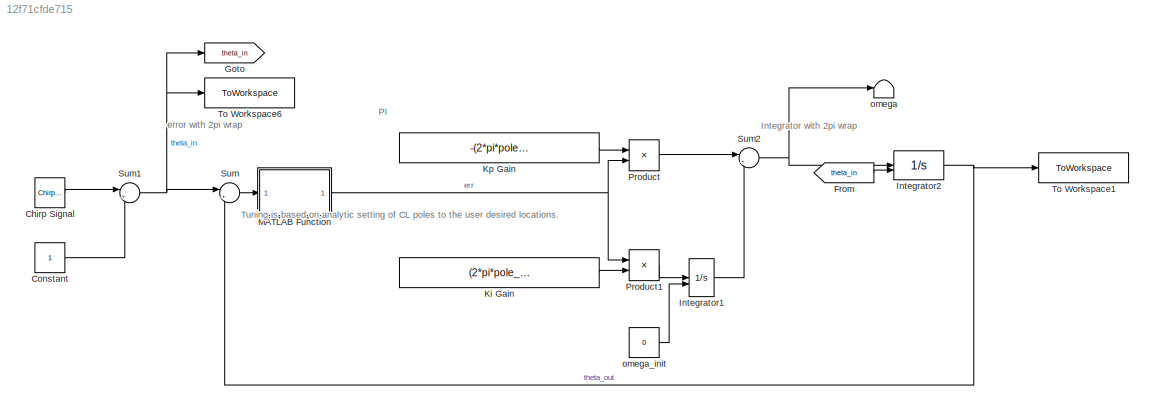
MODEL slx_12f71cfde715
KIND model
CONFIG AbsTol = auto
CONFIG EnableMultiTasking = off
CONFIG FixedStep = Tsim
CONFIG MaxStep = auto
CONFIG MinStep = auto
CONFIG RelTol = 1e-4
CONFIG SampleTimeConstraint = Unconstrained
CONFIG SolverName = FixedStepAuto
CONFIG StartTime = 0.0
CONFIG StopTime = Tend
BLOCK [Reference] Chirp Signal  REF=simulink/Sources/Chirp Signal
  SourceBlock = simulink/Sources/Chirp Signal
  SourceType = chirp
BLOCK [Constant] Constant
BLOCK [From] From
  GotoTag = theta_in
BLOCK [Goto] Goto
  GotoTag = theta_in
BLOCK [Integrator] Integrator1
  InitialConditionSource = external
BLOCK [Integrator] Integrator2
  InitialConditionSource = external
  WrapState = on
BLOCK [Constant] Ki Gain
  Value = (2*pi*pole_1_Hz)*(2*pi*pole_2_Hz)
BLOCK [Constant] Kp Gain
  Value = -(2*pi*pole_1_Hz) - (2*pi*pole_2_Hz)
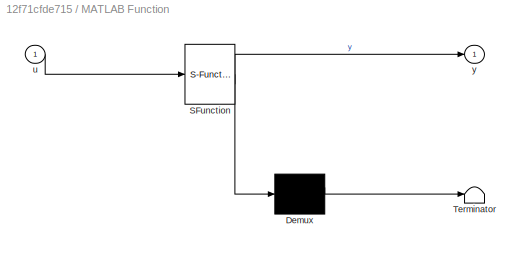
BLOCK [SubSystem] MATLAB Function
  ErrorFcn = Stateflow.Translate.translate
  LibrarySourceBlock = simulink/User-Defined\nFunctions/MATLAB Function
  PermitHierarchicalResolution = ExplicitOnly
  SFBlockType = MATLAB Function
  TreatAsAtomicUnit = on
BLOCK [Demux] MATLAB Function/ Demux 
  Outputs = 1
BLOCK [S-Function] MATLAB Function/ SFunction 
  EnableBusSupport = on
  FunctionName = sf_sfun
  PortCounts = [1 2]
  SFcnIsStateOwnerBlock = off
  SFunctionDeploymentMode = off
  Tag = Stateflow S-Function 13
BLOCK [Terminator] MATLAB Function/ Terminator 
BLOCK [Inport] MATLAB Function/u
BLOCK [Outport] MATLAB Function/y
BLOCK [Product] Product
BLOCK [Product] Product1
BLOCK [Sum] Sum
  Inputs = |+-
BLOCK [Sum] Sum1
  Inputs = |++
BLOCK [Sum] Sum2
  Inputs = |++
BLOCK [ToWorkspace] To Workspace1
  FixptAsFi = on
  MaxDataPoints = inf
  SampleTime = -1
  SaveFormat = Timeseries
  VariableName = theta_out
BLOCK [ToWorkspace] To Workspace6
  FixptAsFi = on
  MaxDataPoints = inf
  SampleTime = -1
  SaveFormat = Timeseries
  VariableName = theta_in
BLOCK [Terminator] omega
BLOCK [Constant] omega_init
  Value = 0
ANNOTATION (root): Integrator with 2pi wrap
ANNOTATION (root): PI
ANNOTATION (root): Tuning is based on analytic setting of CL poles to the user desired locations.
ANNOTATION (root): error with 2pi wrap
LINE Chirp Signal:1 -> Sum1:1
LINE Constant:1 -> Sum1:2
LINE From:1 -> Integrator2:2
LINE Integrator1:1 -> Sum2:2
NET Integrator2:1 -> Sum:2, To Workspace1:1
LINE Ki Gain:1 -> Product1:2
LINE Kp Gain:1 -> Product:1
NET MATLAB Function:1 -> Product1:1, Product:2
LINE Product1:1 -> Integrator1:1
LINE Product:1 -> Sum2:1
NET Sum1:1 -> Goto:1, Sum:1, To Workspace6:1
NET Sum2:1 -> Integrator2:1, omega:1
LINE Sum:1 -> MATLAB Function:1
LINE omega_init:1 -> Integrator1:2
note: NET lines group one-source signal fan-out (src -> all destinations, sorted); 1:1 wires keep LINE
CHART MATLAB Function states=1 transitions=1
  STATE_LABEL 'eML_blk_kernel()'
  STATE_LABEL 'SCRIPT:\nfunction y = fcn(u)\n\ny = u;\n\nif y > pi\n    y = y - 2*pi;\nend\n\nif y < -pi\n    y = y + 2*pi;\nend\n    \n\n'
CHART  states=0 transitions=0
